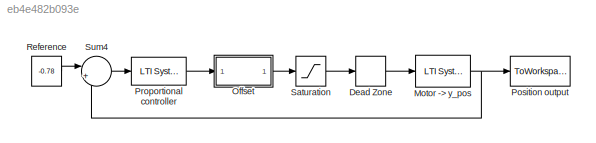
MODEL slx_eb4e482b093e
KIND model
CONFIG AbsTol = auto
CONFIG FixedStep = 0.01
CONFIG MaxStep = auto
CONFIG MinStep = auto
CONFIG RelTol = 1e-3
CONFIG SampleTimeConstraint = Unconstrained
CONFIG Solver = ode3
CONFIG SolverMode = Auto
CONFIG SolverName = ode3
CONFIG StartTime = 0.0
CONFIG StopTime = 10
BLOCK [DeadZone] Dead Zone
  LowerValue = -5.5
  UpperValue = 3
BLOCK [Reference] Motor -> y_pos  REF=cstblocks/LTI System
  IC = []
  Ports = [1, 1]
  SourceBlock = cstblocks/LTI System
  SourceType = LTI Block
  sys = Hywu
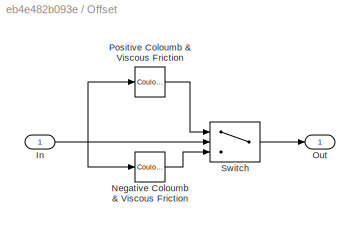
BLOCK [SubSystem] Offset
  Ports = [1, 1]
  RequestExecContextInheritance = off
BLOCK [Inport] Offset/In
  IconDisplay = Port number
BLOCK [Reference] Offset/Negative Coloumb & Viscous Friction  REF=simulink/Discontinuities/Coulomb &
Viscous Friction
  Ports = [1, 1]
  SourceBlock = simulink/Discontinuities/Coulomb &\nViscous Friction
  SourceType = Coulombic and Viscous Friction
  gain = 1
  offset = [5.5]
BLOCK [Outport] Offset/Out
  IconDisplay = Port number
BLOCK [Reference] Offset/Positive Coloumb & Viscous Friction  REF=simulink/Discontinuities/Coulomb &
Viscous Friction
  Ports = [1, 1]
  SourceBlock = simulink/Discontinuities/Coulomb &\nViscous Friction
  SourceType = Coulombic and Viscous Friction
  gain = 1
  offset = [3]
BLOCK [Switch] Offset/Switch
  Criteria = u2 > Threshold
  InputSameDT = off
  SaturateOnIntegerOverflow = off
BLOCK [ToWorkspace] Position output
  FixptAsFi = on
  MaxDataPoints = inf
  Ports = [1]
  SampleTime = -1
  Save2DSignal = 3-D array (concatenate along third dimension)
  SaveFormat = Timeseries
  VariableName = P_out
BLOCK [Reference] Proportional controller  REF=cstblocks/LTI System
  IC = []
  Ports = [1, 1]
  SourceBlock = cstblocks/LTI System
  SourceType = LTI Block
  sys = Pywu
BLOCK [Constant] Reference
  Value = -0.78
BLOCK [Saturate] Saturation
  InputPortMap = u0
  LowerLimit = -12.5
  Ports = [1, 1]
  UpperLimit = 12.5
BLOCK [Sum] Sum4
  IconShape = round
  InputSameDT = off
  Inputs = |+-
  OutDataTypeStr = Inherit: Inherit via internal rule
  Ports = [2, 1]
  SaturateOnIntegerOverflow = off
LINE Dead Zone:1 -> Motor -> y_pos:1
NET Motor -> y_pos:1 -> Position output:1, Sum4:2
NET Offset/In:1 -> Offset/Negative Coloumb & Viscous Friction:1, Offset/Positive Coloumb & Viscous Friction:1, Offset/Switch:2
LINE Offset/Negative Coloumb & Viscous Friction:1 -> Offset/Switch:3
LINE Offset/Positive Coloumb & Viscous Friction:1 -> Offset/Switch:1
LINE Offset/Switch:1 -> Offset/Out:1
LINE Offset:1 -> Saturation:1
LINE Proportional controller:1 -> Offset:1
LINE Reference:1 -> Sum4:1
LINE Saturation:1 -> Dead Zone:1
LINE Sum4:1 -> Proportional controller:1
note: NET lines group one-source signal fan-out (src -> all destinations, sorted); 1:1 wires keep LINE
